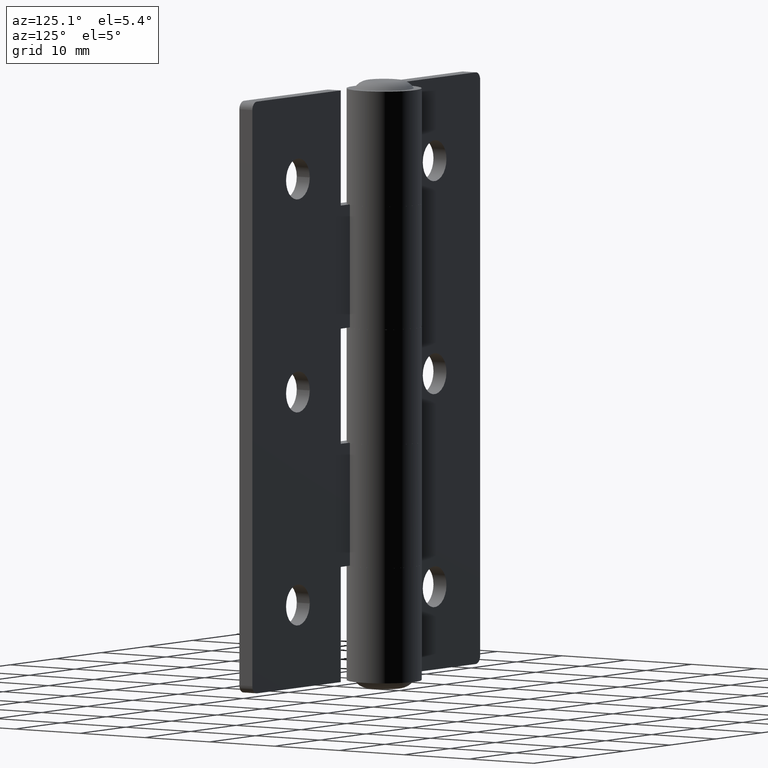
[diagram: clean part render]
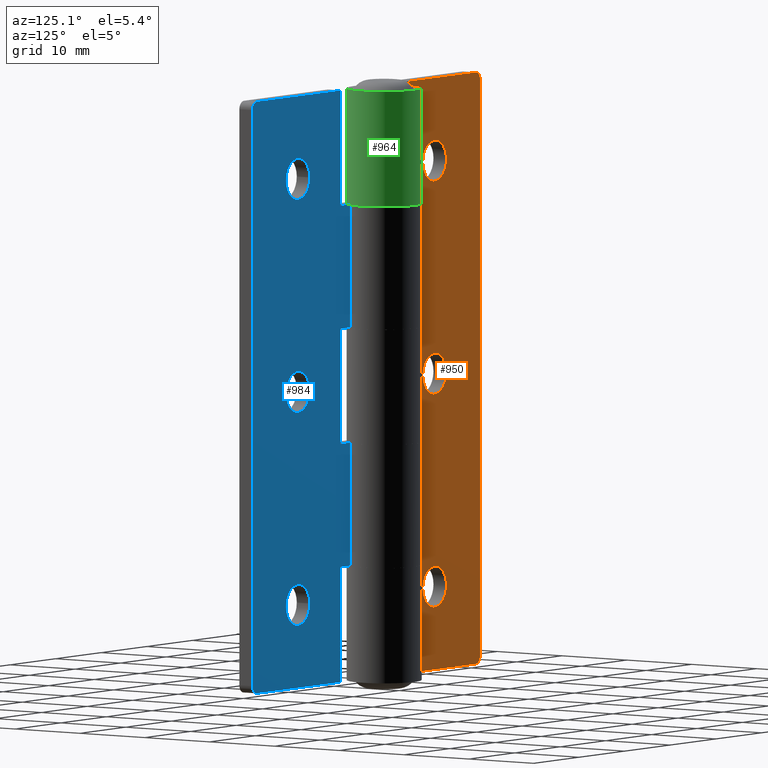
[diagram: same view with three faces highlighted in distinct colors, each labeled with its STEP entity id]
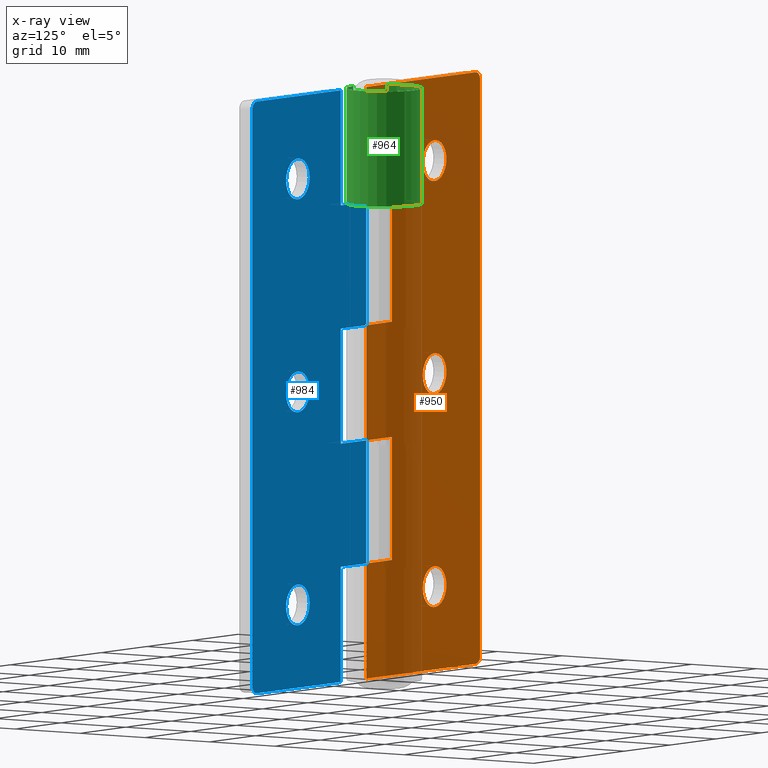
[diagram: x-ray of the same camera — body ghosted, the three highlighted faces saturated]
A machine part, auxiliary view with three faces highlighted in distinct colors.
The next image is the same camera in x-ray (body ghosted, the three faces saturated) — at least one of them is partly hidden behind the body in this view.
Their STEP definitions:

[orange] entity #950 — the highlighted planar face has unit normal (-0, 1, 0).
#31=FACE_BOUND('',#144,.T.);
#32=FACE_BOUND('',#145,.T.);
#33=FACE_BOUND('',#146,.T.);
#55=PLANE('',#1013);
#88=FACE_OUTER_BOUND('',#143,.T.);
#143=EDGE_LOOP('',(#673,#674,#675,#676,#677,#678,#679,#680,#681,#682,#683,
#684,#685,#686));
#144=EDGE_LOOP('',(#687));
#145=EDGE_LOOP('',(#688));
#146=EDGE_LOOP('',(#689));
#221=LINE('',#1422,#307);
#224=LINE('',#1432,#310);
#225=LINE('',#1436,#311);
#226=LINE('',#1438,#312);
#227=LINE('',#1440,#313);
#228=LINE('',#1442,#314);
#229=LINE('',#1444,#315);
#230=LINE('',#1446,#316);
#231=LINE('',#1448,#317);
#232=LINE('',#1450,#318);
#233=LINE('',#1452,#319);
#234=LINE('',#1453,#320);
#307=VECTOR('',#1124,24.);
#310=VECTOR('',#1133,73.);
#311=VECTOR('',#1136,24.);
#312=VECTOR('',#1137,14.6);
#313=VECTOR('',#1138,5.60000000000001);
#314=VECTOR('',#1139,15.6);
#315=VECTOR('',#1140,5.6);
#316=VECTOR('',#1141,14.6);
#317=VECTOR('',#1142,5.6);
#318=VECTOR('',#1143,15.6);
#319=VECTOR('',#1144,5.59999999999999);
#320=VECTOR('',#1145,14.6);
#391=CIRCLE('',#1008,1.);
#395=CIRCLE('',#1014,1.);
#396=CIRCLE('',#1015,2.6);
#397=CIRCLE('',#1016,2.6);
#398=CIRCLE('',#1017,2.6);
#437=VERTEX_POINT('',#1412);
#438=VERTEX_POINT('',#1413);
#441=VERTEX_POINT('',#1421);
#445=VERTEX_POINT('',#1431);
#446=VERTEX_POINT('',#1433);
#447=VERTEX_POINT('',#1435);
#448=VERTEX_POINT('',#1437);
#449=VERTEX_POINT('',#1439);
#450=VERTEX_POINT('',#1441);
#451=VERTEX_POINT('',#1443);
#452=VERTEX_POINT('',#1445);
#453=VERTEX_POINT('',#1447);
#454=VERTEX_POINT('',#1449);
#455=VERTEX_POINT('',#1451);
#456=VERTEX_POINT('',#1454);
#457=VERTEX_POINT('',#1456);
#458=VERTEX_POINT('',#1458);
#531=EDGE_CURVE('',#437,#438,#391,.T.);
#535=EDGE_CURVE('',#438,#441,#221,.T.);
#540=EDGE_CURVE('',#437,#445,#224,.T.);
#541=EDGE_CURVE('',#446,#445,#395,.T.);
#542=EDGE_CURVE('',#447,#446,#225,.T.);
#543=EDGE_CURVE('',#448,#447,#226,.T.);
#544=EDGE_CURVE('',#448,#449,#227,.T.);
#545=EDGE_CURVE('',#449,#450,#228,.T.);
#546=EDGE_CURVE('',#450,#451,#229,.T.);
#547=EDGE_CURVE('',#452,#451,#230,.T.);
#548=EDGE_CURVE('',#452,#453,#231,.T.);
#549=EDGE_CURVE('',#453,#454,#232,.T.);
#550=EDGE_CURVE('',#454,#455,#233,.T.);
#551=EDGE_CURVE('',#441,#455,#234,.T.);
#552=EDGE_CURVE('',#456,#456,#396,.T.);
#553=EDGE_CURVE('',#457,#457,#397,.T.);
#554=EDGE_CURVE('',#458,#458,#398,.T.);
#673=ORIENTED_EDGE('',*,*,#531,.F.);
#674=ORIENTED_EDGE('',*,*,#540,.T.);
#675=ORIENTED_EDGE('',*,*,#541,.F.);
#676=ORIENTED_EDGE('',*,*,#542,.F.);
#677=ORIENTED_EDGE('',*,*,#543,.F.);
#678=ORIENTED_EDGE('',*,*,#544,.T.);
#679=ORIENTED_EDGE('',*,*,#545,.T.);
#680=ORIENTED_EDGE('',*,*,#546,.T.);
#681=ORIENTED_EDGE('',*,*,#547,.F.);
#682=ORIENTED_EDGE('',*,*,#548,.T.);
#683=ORIENTED_EDGE('',*,*,#549,.T.);
#684=ORIENTED_EDGE('',*,*,#550,.T.);
#685=ORIENTED_EDGE('',*,*,#551,.F.);
#686=ORIENTED_EDGE('',*,*,#535,.F.);
#687=ORIENTED_EDGE('',*,*,#552,.T.);
#688=ORIENTED_EDGE('',*,*,#553,.T.);
#689=ORIENTED_EDGE('',*,*,#554,.T.);
#950=ADVANCED_FACE('',(#88,#31,#32,#33),#55,.T.);
#1008=AXIS2_PLACEMENT_3D('',#1414,#1116,#1117);
#1013=AXIS2_PLACEMENT_3D('',#1430,#1131,#1132);
#1014=AXIS2_PLACEMENT_3D('',#1434,#1134,#1135);
#1015=AXIS2_PLACEMENT_3D('',#1455,#1146,#1147);
#1016=AXIS2_PLACEMENT_3D('',#1457,#1148,#1149);
#1017=AXIS2_PLACEMENT_3D('',#1459,#1150,#1151);
#1116=DIRECTION('center_axis',(3.99680288865056E-16,-1.,0.));
#1117=DIRECTION('ref_axis',(-0.707106781186548,0.,-0.707106781186548));
#1124=DIRECTION('',(1.,3.99680288865056E-16,0.));
#1131=DIRECTION('center_axis',(-3.99680288865056E-16,1.,0.));
#1132=DIRECTION('ref_axis',(-1.,-3.99680288865056E-16,0.));
#1133=DIRECTION('',(0.,0.,1.));
#1134=DIRECTION('center_axis',(3.99680288865056E-16,-1.,0.));
#1135=DIRECTION('ref_axis',(-0.707106781186548,0.,0.707106781186548));
#1136=DIRECTION('',(-1.,-3.99680288865056E-16,0.));
#1137=DIRECTION('',(0.,0.,1.));
#1138=DIRECTION('',(-1.,-3.99680288865056E-16,-4.29071700338225E-16));
#1139=DIRECTION('',(4.2700885562506E-16,1.70667022764161E-31,-1.));
#1140=DIRECTION('',(1.,3.99680288865056E-16,4.29071700338225E-16));
#1141=DIRECTION('',(0.,0.,1.));
#1142=DIRECTION('',(-1.,-3.99680288865056E-16,0.));
#1143=DIRECTION('',(2.84672570416707E-16,1.13778015176108E-31,-1.));
#1144=DIRECTION('',(1.,3.99680288865056E-16,0.));
#1145=DIRECTION('',(0.,0.,1.));
#1146=DIRECTION('center_axis',(3.99680288865056E-16,-1.,0.));
#1147=DIRECTION('ref_axis',(1.,3.99680288865056E-16,0.));
#1148=DIRECTION('center_axis',(3.99680288865056E-16,-1.,0.));
#1149=DIRECTION('ref_axis',(1.,3.99680288865056E-16,0.));
#1150=DIRECTION('center_axis',(3.99680288865056E-16,-1.,0.));
#1151=DIRECTION('ref_axis',(1.,3.99680288865056E-16,0.));
#1412=CARTESIAN_POINT('',(-25.,1.99999999999999,-36.5));
#1413=CARTESIAN_POINT('',(-24.,1.99999999999999,-37.5));
#1414=CARTESIAN_POINT('Origin',(-24.,2.,-36.5));
#1421=CARTESIAN_POINT('',(-3.67394039744207E-16,2.,-37.5));
#1422=CARTESIAN_POINT('',(0.,2.,-37.5));
#1430=CARTESIAN_POINT('Origin',(-3.67394039744207E-16,2.,0.));
#1431=CARTESIAN_POINT('',(-25.,1.99999999999999,36.5));
#1432=CARTESIAN_POINT('',(-25.,1.99999999999999,0.));
#1433=CARTESIAN_POINT('',(-24.,1.99999999999999,37.5));
#1434=CARTESIAN_POINT('Origin',(-24.,2.,36.5));
#1435=CARTESIAN_POINT('',(-3.67394039744207E-16,2.,37.5));
#1436=CARTESIAN_POINT('',(0.,2.,37.5));
#1437=CARTESIAN_POINT('',(-3.67394039744207E-16,2.,22.9));
#1438=CARTESIAN_POINT('',(-3.67394039744207E-16,2.,0.));
#1439=CARTESIAN_POINT('',(-5.60000000000001,2.,22.9));
#1440=CARTESIAN_POINT('',(-2.80000000000001,2.,22.9));
#1441=CARTESIAN_POINT('',(-5.6,2.,7.3));
#1442=CARTESIAN_POINT('',(-5.6,2.,3.65));
#1443=CARTESIAN_POINT('',(-3.67394039744207E-16,2.,7.3));
#1444=CARTESIAN_POINT('',(2.375,2.00000000000001,7.3));
#1445=CARTESIAN_POINT('',(-3.67394039744207E-16,2.,-7.3));
#1446=CARTESIAN_POINT('',(-3.67394039744207E-16,2.,0.));
#1447=CARTESIAN_POINT('',(-5.6,2.,-7.3));
#1448=CARTESIAN_POINT('',(-2.8,2.,-7.3));
#1449=CARTESIAN_POINT('',(-5.6,2.,-22.9));
#1450=CARTESIAN_POINT('',(-5.6,2.,-11.45));
#1451=CARTESIAN_POINT('',(-3.67394039744207E-16,2.,-22.9));
#1452=CARTESIAN_POINT('',(2.375,2.00000000000001,-22.9));
#1453=CARTESIAN_POINT('',(-3.67394039744207E-16,2.,0.));
#1454=CARTESIAN_POINT('',(-12.4,2.,0.));
#1455=CARTESIAN_POINT('Origin',(-15.,2.,0.));
#1456=CARTESIAN_POINT('',(-12.4,2.,27.));
#1457=CARTESIAN_POINT('Origin',(-15.,2.,27.));
#1458=CARTESIAN_POINT('',(-12.4,2.,-27.));
#1459=CARTESIAN_POINT('Origin',(-15.,2.,-27.));

[blue] entity #984 — the highlighted planar face has unit normal (0, 1, 0).
#48=FACE_BOUND('',#195,.T.);
#49=FACE_BOUND('',#196,.T.);
#50=FACE_BOUND('',#197,.T.);
#74=PLANE('',#1079);
#122=FACE_OUTER_BOUND('',#194,.T.);
#194=EDGE_LOOP('',(#836,#837,#838,#839,#840,#841,#842,#843,#844,#845,#846,
#847,#848,#849));
#195=EDGE_LOOP('',(#850));
#196=EDGE_LOOP('',(#851));
#197=EDGE_LOOP('',(#852));
#267=LINE('',#1582,#353);
#280=LINE('',#1619,#366);
#281=LINE('',#1621,#367);
#282=LINE('',#1623,#368);
#283=LINE('',#1625,#369);
#284=LINE('',#1627,#370);
#285=LINE('',#1629,#371);
#286=LINE('',#1631,#372);
#287=LINE('',#1633,#373);
#288=LINE('',#1635,#374);
#289=LINE('',#1637,#375);
#290=LINE('',#1638,#376);
#353=VECTOR('',#1292,73.);
#366=VECTOR('',#1321,18.4);
#367=VECTOR('',#1322,14.6);
#368=VECTOR('',#1323,5.60000000000001);
#369=VECTOR('',#1324,15.6);
#370=VECTOR('',#1325,5.6);
#371=VECTOR('',#1326,14.6);
#372=VECTOR('',#1327,5.6);
#373=VECTOR('',#1328,15.6);
#374=VECTOR('',#1329,5.59999999999999);
#375=VECTOR('',#1330,14.6);
#376=VECTOR('',#1331,18.4);
#419=CIRCLE('',#1069,1.);
#425=CIRCLE('',#1078,1.);
#426=CIRCLE('',#1080,2.6);
#427=CIRCLE('',#1081,2.6);
#428=CIRCLE('',#1082,2.6);
#489=VERTEX_POINT('',#1569);
#490=VERTEX_POINT('',#1570);
#494=VERTEX_POINT('',#1580);
#509=VERTEX_POINT('',#1614);
#510=VERTEX_POINT('',#1618);
#511=VERTEX_POINT('',#1620);
#512=VERTEX_POINT('',#1622);
#513=VERTEX_POINT('',#1624);
#514=VERTEX_POINT('',#1626);
#515=VERTEX_POINT('',#1628);
#516=VERTEX_POINT('',#1630);
#517=VERTEX_POINT('',#1632);
#518=VERTEX_POINT('',#1634);
#519=VERTEX_POINT('',#1636);
#520=VERTEX_POINT('',#1639);
#521=VERTEX_POINT('',#1641);
#522=VERTEX_POINT('',#1643);
#603=EDGE_CURVE('',#489,#490,#419,.T.);
#609=EDGE_CURVE('',#489,#494,#267,.T.);
#626=EDGE_CURVE('',#509,#494,#425,.T.);
#627=EDGE_CURVE('',#510,#509,#280,.T.);
#628=EDGE_CURVE('',#510,#511,#281,.T.);
#629=EDGE_CURVE('',#511,#512,#282,.T.);
#630=EDGE_CURVE('',#513,#512,#283,.T.);
#631=EDGE_CURVE('',#513,#514,#284,.T.);
#632=EDGE_CURVE('',#514,#515,#285,.T.);
#633=EDGE_CURVE('',#515,#516,#286,.T.);
#634=EDGE_CURVE('',#517,#516,#287,.T.);
#635=EDGE_CURVE('',#517,#518,#288,.T.);
#636=EDGE_CURVE('',#518,#519,#289,.T.);
#637=EDGE_CURVE('',#490,#519,#290,.T.);
#638=EDGE_CURVE('',#520,#520,#426,.T.);
#639=EDGE_CURVE('',#521,#521,#427,.T.);
#640=EDGE_CURVE('',#522,#522,#428,.T.);
#836=ORIENTED_EDGE('',*,*,#603,.F.);
#837=ORIENTED_EDGE('',*,*,#609,.T.);
#838=ORIENTED_EDGE('',*,*,#626,.F.);
#839=ORIENTED_EDGE('',*,*,#627,.F.);
#840=ORIENTED_EDGE('',*,*,#628,.T.);
#841=ORIENTED_EDGE('',*,*,#629,.T.);
#842=ORIENTED_EDGE('',*,*,#630,.F.);
#843=ORIENTED_EDGE('',*,*,#631,.T.);
#844=ORIENTED_EDGE('',*,*,#632,.T.);
#845=ORIENTED_EDGE('',*,*,#633,.T.);
#846=ORIENTED_EDGE('',*,*,#634,.F.);
#847=ORIENTED_EDGE('',*,*,#635,.T.);
#848=ORIENTED_EDGE('',*,*,#636,.T.);
#849=ORIENTED_EDGE('',*,*,#637,.F.);
#850=ORIENTED_EDGE('',*,*,#638,.T.);
#851=ORIENTED_EDGE('',*,*,#639,.T.);
#852=ORIENTED_EDGE('',*,*,#640,.T.);
#984=ADVANCED_FACE('',(#122,#48,#49,#50),#74,.T.);
#1069=AXIS2_PLACEMENT_3D('',#1571,#1282,#1283);
#1078=AXIS2_PLACEMENT_3D('',#1616,#1317,#1318);
#1079=AXIS2_PLACEMENT_3D('',#1617,#1319,#1320);
#1080=AXIS2_PLACEMENT_3D('',#1640,#1332,#1333);
#1081=AXIS2_PLACEMENT_3D('',#1642,#1334,#1335);
#1082=AXIS2_PLACEMENT_3D('',#1644,#1336,#1337);
#1282=DIRECTION('center_axis',(3.99680288865056E-16,-1.,0.));
#1283=DIRECTION('ref_axis',(-0.707106781186548,0.,-0.707106781186548));
#1292=DIRECTION('',(0.,0.,1.));
#1317=DIRECTION('center_axis',(3.99680288865056E-16,-1.,0.));
#1318=DIRECTION('ref_axis',(-0.707106781186548,0.,0.707106781186548));
#1319=DIRECTION('center_axis',(-3.99680288865056E-16,1.,0.));
#1320=DIRECTION('ref_axis',(-1.,-3.99680288865056E-16,0.));
#1321=DIRECTION('',(-1.,-3.99680288865056E-16,0.));
#1322=DIRECTION('',(-1.52085345839063E-16,-6.07855149570985E-32,-1.));
#1323=DIRECTION('',(1.,3.99680288865056E-16,4.29071700338225E-16));
#1324=DIRECTION('',(0.,0.,1.));
#1325=DIRECTION('',(-1.,-3.99680288865056E-16,-4.29071700338225E-16));
#1326=DIRECTION('',(1.52085345839063E-16,6.07855149570985E-32,-1.));
#1327=DIRECTION('',(1.,3.99680288865056E-16,0.));
#1328=DIRECTION('',(0.,0.,1.));
#1329=DIRECTION('',(-1.,-3.99680288865056E-16,0.));
#1330=DIRECTION('',(0.,0.,-1.));
#1331=DIRECTION('',(1.,3.99680288865056E-16,0.));
#1332=DIRECTION('center_axis',(3.99680288865056E-16,-1.,0.));
#1333=DIRECTION('ref_axis',(1.,3.99680288865056E-16,0.));
#1334=DIRECTION('center_axis',(3.99680288865056E-16,-1.,0.));
#1335=DIRECTION('ref_axis',(1.,3.99680288865056E-16,0.));
#1336=DIRECTION('center_axis',(3.99680288865056E-16,-1.,0.));
#1337=DIRECTION('ref_axis',(1.,3.99680288865056E-16,0.));
#1569=CARTESIAN_POINT('',(-25.,1.99999999999999,-36.5));
#1570=CARTESIAN_POINT('',(-24.,1.99999999999999,-37.5));
#1571=CARTESIAN_POINT('Origin',(-24.,2.,-36.5));
#1580=CARTESIAN_POINT('',(-25.,1.99999999999999,36.5));
#1582=CARTESIAN_POINT('',(-25.,1.99999999999999,0.));
#1614=CARTESIAN_POINT('',(-24.,1.99999999999999,37.5));
#1616=CARTESIAN_POINT('Origin',(-24.,2.,36.5));
#1617=CARTESIAN_POINT('Origin',(-3.67394039744207E-16,2.,0.));
#1618=CARTESIAN_POINT('',(-5.60000000000001,2.,37.5));
#1619=CARTESIAN_POINT('',(0.,2.,37.5));
#1620=CARTESIAN_POINT('',(-5.60000000000001,2.,22.9));
#1621=CARTESIAN_POINT('',(-5.60000000000001,2.,11.45));
#1622=CARTESIAN_POINT('',(-3.67394039744207E-16,2.,22.9));
#1623=CARTESIAN_POINT('',(2.37499999999999,2.00000000000001,22.9));
#1624=CARTESIAN_POINT('',(-3.67394039744207E-16,2.,7.3));
#1625=CARTESIAN_POINT('',(-3.67394039744207E-16,2.,0.));
#1626=CARTESIAN_POINT('',(-5.6,2.,7.3));
#1627=CARTESIAN_POINT('',(-2.8,2.,7.3));
#1628=CARTESIAN_POINT('',(-5.6,2.,-7.3));
#1629=CARTESIAN_POINT('',(-5.6,2.,-3.65));
#1630=CARTESIAN_POINT('',(-3.67394039744207E-16,2.,-7.3));
#1631=CARTESIAN_POINT('',(2.375,2.00000000000001,-7.3));
#1632=CARTESIAN_POINT('',(-3.67394039744207E-16,2.,-22.9));
#1633=CARTESIAN_POINT('',(-3.67394039744207E-16,2.,0.));
#1634=CARTESIAN_POINT('',(-5.6,2.,-22.9));
#1635=CARTESIAN_POINT('',(-2.8,2.,-22.9));
#1636=CARTESIAN_POINT('',(-5.6,2.,-37.5));
#1637=CARTESIAN_POINT('',(-5.59999999999999,2.,-18.75));
#1638=CARTESIAN_POINT('',(0.,2.,-37.5));
#1639=CARTESIAN_POINT('',(-12.4,2.,0.));
#1640=CARTESIAN_POINT('Origin',(-15.,2.,0.));
#1641=CARTESIAN_POINT('',(-12.4,2.,27.));
#1642=CARTESIAN_POINT('Origin',(-15.,2.,27.));
#1643=CARTESIAN_POINT('',(-12.4,2.,-27.));
#1644=CARTESIAN_POINT('Origin',(-15.,2.,-27.));

[green] entity #964 — the highlighted cylindrical surface (partial cylindrical patch) has radius 4.75 mm, axis along (0, 0, 1).
#102=FACE_OUTER_BOUND('',#166,.T.);
#166=EDGE_LOOP('',(#759,#760,#761,#762));
#247=LINE('',#1491,#333);
#258=LINE('',#1535,#344);
#333=VECTOR('',#1176,14.6);
#344=VECTOR('',#1231,14.6);
#400=CIRCLE('',#1021,4.75);
#409=CIRCLE('',#1038,4.75);
#461=VERTEX_POINT('',#1467);
#462=VERTEX_POINT('',#1469);
#471=VERTEX_POINT('',#1489);
#479=VERTEX_POINT('',#1518);
#559=EDGE_CURVE('',#461,#462,#400,.T.);
#570=EDGE_CURVE('',#471,#461,#247,.T.);
#583=EDGE_CURVE('',#471,#479,#409,.T.);
#592=EDGE_CURVE('',#479,#462,#258,.T.);
#759=ORIENTED_EDGE('',*,*,#583,.T.);
#760=ORIENTED_EDGE('',*,*,#592,.T.);
#761=ORIENTED_EDGE('',*,*,#559,.F.);
#762=ORIENTED_EDGE('',*,*,#570,.F.);
#933=CYLINDRICAL_SURFACE('',#1045,4.75);
#964=ADVANCED_FACE('',(#102),#933,.T.);
#1021=AXIS2_PLACEMENT_3D('',#1470,#1161,#1162);
#1038=AXIS2_PLACEMENT_3D('',#1519,#1210,#1211);
#1045=AXIS2_PLACEMENT_3D('',#1534,#1229,#1230);
#1161=DIRECTION('center_axis',(0.,0.,1.));
#1162=DIRECTION('ref_axis',(-0.815364914991035,-0.578947368421052,0.));
#1176=DIRECTION('',(0.,0.,1.));
#1210=DIRECTION('center_axis',(-4.29071700338225E-16,-1.19091320232641E-31,
1.));
#1211=DIRECTION('ref_axis',(-0.815364914991035,-0.578947368421052,0.));
#1229=DIRECTION('center_axis',(0.,0.,1.));
#1230=DIRECTION('ref_axis',(-0.815364914991035,-0.578947368421052,0.));
#1231=DIRECTION('',(0.,0.,1.));
#1467=CARTESIAN_POINT('',(0.,0.,37.5));
#1469=CARTESIAN_POINT('',(-4.11362066797608,2.375,37.5));
#1470=CARTESIAN_POINT('Origin',(-3.67394039744207E-16,4.75,37.5));
#1489=CARTESIAN_POINT('',(1.85305200950611E-15,0.,22.9));
#1491=CARTESIAN_POINT('',(1.85305200950611E-15,0.,0.));
#1518=CARTESIAN_POINT('',(-4.11362066797608,2.375,22.9));
#1519=CARTESIAN_POINT('Origin',(-3.67394039744207E-16,4.75,22.9));
#1534=CARTESIAN_POINT('Origin',(-3.67394039744207E-16,4.75,0.));
#1535=CARTESIAN_POINT('',(-4.11362066797608,2.375,0.));